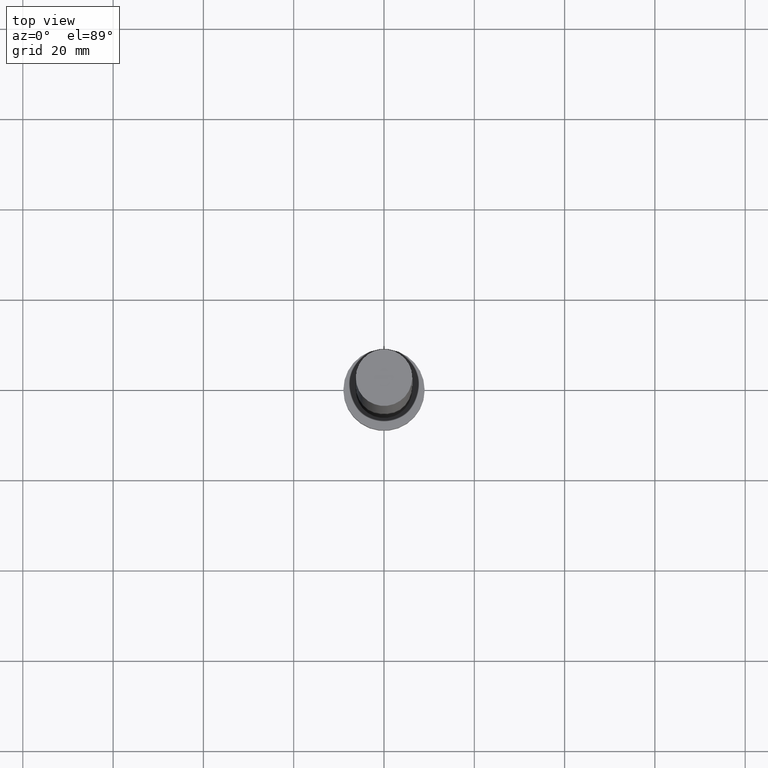
[diagram: clean part render]
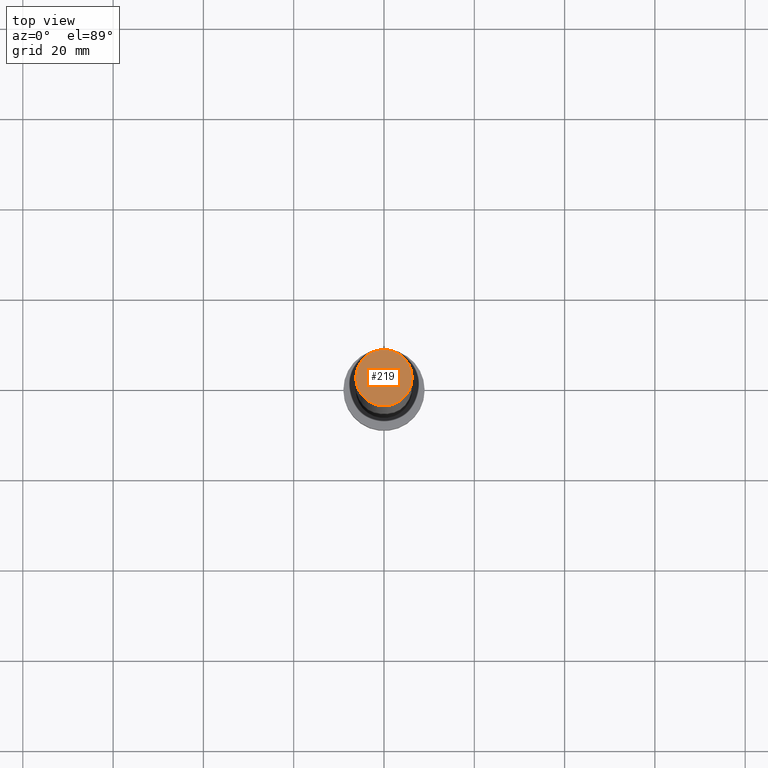
[diagram: same view with one face highlighted and labeled with its STEP entity id]
A machine part, top view. The second image highlights one B-rep face of the part: STEP entity #219.
In plain terms, the highlighted planar face has unit normal (0, 0, 1).
Its self-contained STEP definition (entity closure, byte-faithful):
#3 = CARTESIAN_POINT ( 'NONE',  ( 6.250000000000000000, 7.654042494670957606E-16, 160.0000000000000000 ) ) ;
#21 = ORIENTED_EDGE ( 'NONE', *, *, #217, .T. ) ;
#22 = CARTESIAN_POINT ( 'NONE',  ( -6.250000000000000000, 0.000000000000000000, 160.0000000000000000 ) ) ;
#25 = CIRCLE ( 'NONE', #55, 6.250000000000000000 ) ;
#34 = DIRECTION ( 'NONE',  ( 0.000000000000000000, 0.000000000000000000, 1.000000000000000000 ) ) ;
#50 = DIRECTION ( 'NONE',  ( 0.000000000000000000, 0.000000000000000000, 1.000000000000000000 ) ) ;
#54 = FACE_OUTER_BOUND ( 'NONE', #80, .T. ) ;
#55 = AXIS2_PLACEMENT_3D ( 'NONE', #148, #34, #129 ) ;
#71 = DIRECTION ( 'NONE',  ( 0.000000000000000000, 0.000000000000000000, 1.000000000000000000 ) ) ;
#77 = PLANE ( 'NONE',  #221 ) ;
#80 = EDGE_LOOP ( 'NONE', ( #21, #144 ) ) ;
#87 = EDGE_CURVE ( 'NONE', #200, #243, #25, .T. ) ;
#110 = CARTESIAN_POINT ( 'NONE',  ( 0.000000000000000000, 0.000000000000000000, 160.0000000000000000 ) ) ;
#129 = DIRECTION ( 'NONE',  ( 1.000000000000000000, 0.000000000000000000, 0.000000000000000000 ) ) ;
#130 = CIRCLE ( 'NONE', #209, 6.250000000000000000 ) ;
#144 = ORIENTED_EDGE ( 'NONE', *, *, #87, .T. ) ;
#148 = CARTESIAN_POINT ( 'NONE',  ( 0.000000000000000000, 0.000000000000000000, 160.0000000000000000 ) ) ;
#150 = DIRECTION ( 'NONE',  ( 1.000000000000000000, 0.000000000000000000, -0.000000000000000000 ) ) ;
#200 = VERTEX_POINT ( 'NONE', #3 ) ;
#209 = AXIS2_PLACEMENT_3D ( 'NONE', #255, #71, #236 ) ;
#217 = EDGE_CURVE ( 'NONE', #243, #200, #130, .T. ) ;
#219 = ADVANCED_FACE ( 'NONE', ( #54 ), #77, .T. ) ;
#221 = AXIS2_PLACEMENT_3D ( 'NONE', #110, #50, #150 ) ;
#236 = DIRECTION ( 'NONE',  ( 1.000000000000000000, 0.000000000000000000, 0.000000000000000000 ) ) ;
#243 = VERTEX_POINT ( 'NONE', #22 ) ;
#255 = CARTESIAN_POINT ( 'NONE',  ( 0.000000000000000000, 0.000000000000000000, 160.0000000000000000 ) ) ;